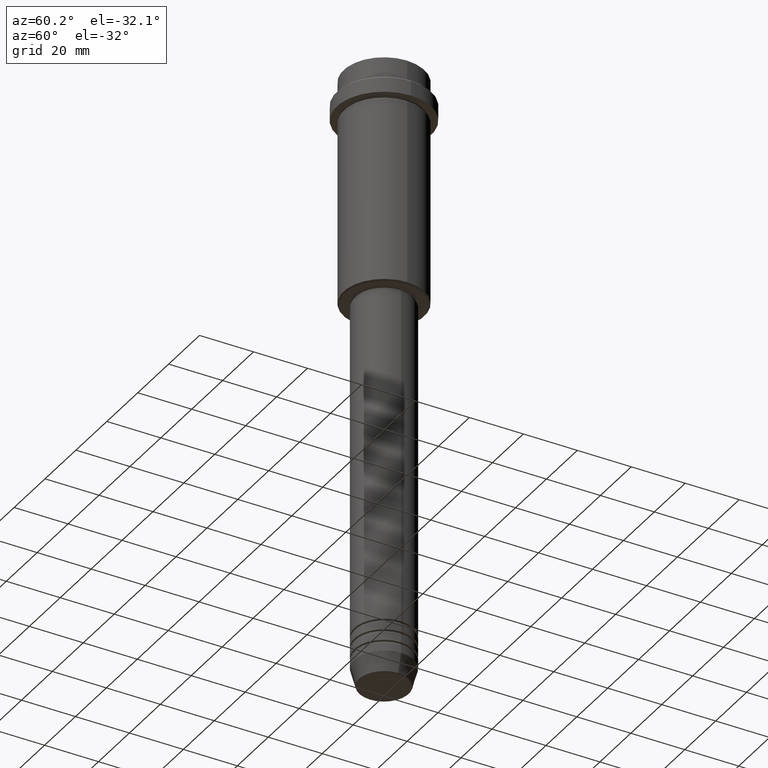
[diagram: clean part render]
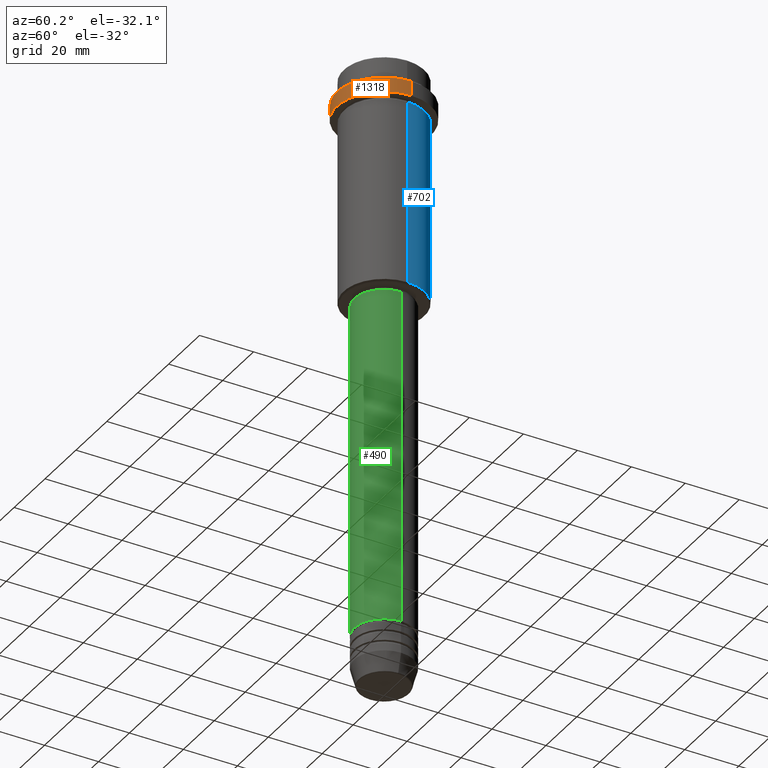
[diagram: same view with three faces highlighted in distinct colors, each labeled with its STEP entity id]
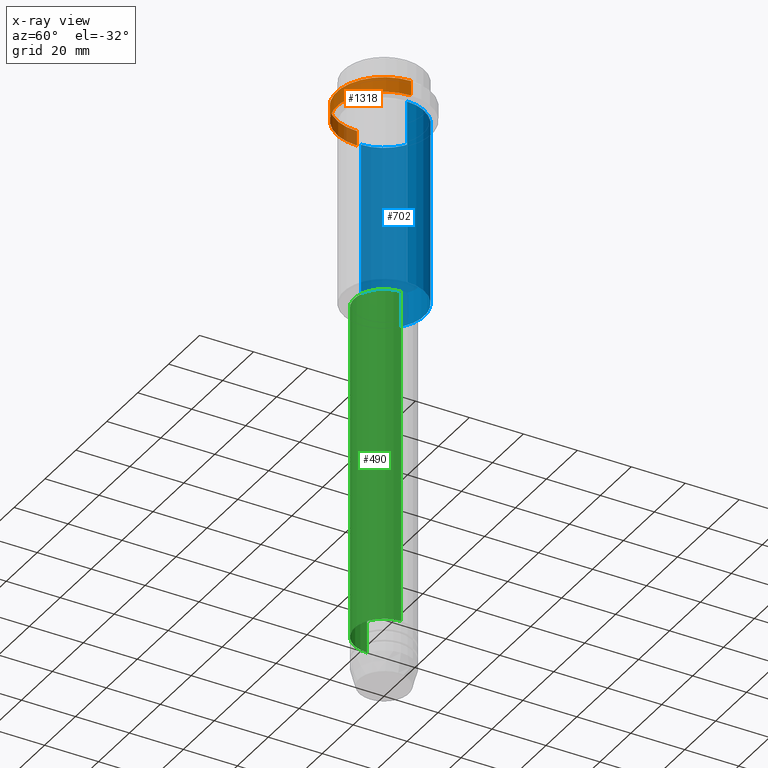
[diagram: x-ray of the same camera — body ghosted, the three highlighted faces saturated]
A machine part, auxiliary view with three faces highlighted in distinct colors.
The next image is the same camera in x-ray (body ghosted, the three faces saturated) — at least one of them is partly hidden behind the body in this view.
Their STEP definitions:

[orange] entity #1318 — the highlighted cylindrical surface (partial cylindrical patch) has radius 17.5 mm, axis along (-0, -0, 1).
#126 = FACE_OUTER_BOUND ( 'NONE', #506, .T. ) ;
#128 = CARTESIAN_POINT ( 'NONE',  ( 17.50000000000000000, 0.000000000000000000, 0.000000000000000000 ) ) ;
#178 = CARTESIAN_POINT ( 'NONE',  ( -17.50000000000000000, 2.143131898507868248E-15, 0.000000000000000000 ) ) ;
#236 = CIRCLE ( 'NONE', #348, 17.50000000000000000 ) ;
#239 = DIRECTION ( 'NONE',  ( -0.000000000000000000, -0.000000000000000000, 1.000000000000000000 ) ) ;
#277 = AXIS2_PLACEMENT_3D ( 'NONE', #1217, #787, #1025 ) ;
#293 = DIRECTION ( 'NONE',  ( 1.000000000000000000, 0.000000000000000000, 0.000000000000000000 ) ) ;
#348 = AXIS2_PLACEMENT_3D ( 'NONE', #962, #404, #293 ) ;
#398 = EDGE_CURVE ( 'NONE', #1394, #1043, #1016, .T. ) ;
#404 = DIRECTION ( 'NONE',  ( -0.000000000000000000, -0.000000000000000000, 1.000000000000000000 ) ) ;
#414 = AXIS2_PLACEMENT_3D ( 'NONE', #869, #239, #665 ) ;
#506 = EDGE_LOOP ( 'NONE', ( #1129, #1159, #769, #1089 ) ) ;
#508 = EDGE_CURVE ( 'NONE', #1043, #995, #753, .T. ) ;
#612 = DIRECTION ( 'NONE',  ( -0.000000000000000000, -0.000000000000000000, 1.000000000000000000 ) ) ;
#665 = DIRECTION ( 'NONE',  ( 1.000000000000000000, 0.000000000000000000, 0.000000000000000000 ) ) ;
#753 = CIRCLE ( 'NONE', #277, 17.50000000000000000 ) ;
#769 = ORIENTED_EDGE ( 'NONE', *, *, #398, .T. ) ;
#787 = DIRECTION ( 'NONE',  ( 0.000000000000000000, 0.000000000000000000, -1.000000000000000000 ) ) ;
#796 = CARTESIAN_POINT ( 'NONE',  ( 17.50000000000000000, 0.000000000000000000, -15.00000000000000000 ) ) ;
#804 = CARTESIAN_POINT ( 'NONE',  ( 17.50000000000000000, 0.000000000000000000, -9.499999999999971578 ) ) ;
#837 = VECTOR ( 'NONE', #612, 1000.000000000000000 ) ;
#869 = CARTESIAN_POINT ( 'NONE',  ( 0.000000000000000000, 0.000000000000000000, 0.000000000000000000 ) ) ;
#897 = CYLINDRICAL_SURFACE ( 'NONE', #414, 17.50000000000000000 ) ;
#930 = LINE ( 'NONE', #178, #837 ) ;
#944 = CARTESIAN_POINT ( 'NONE',  ( -17.50000000000000000, 2.143131898507868248E-15, -15.00000000000000000 ) ) ;
#962 = CARTESIAN_POINT ( 'NONE',  ( 0.000000000000000000, 0.000000000000000000, -15.00000000000000000 ) ) ;
#971 = VECTOR ( 'NONE', #1005, 1000.000000000000000 ) ;
#995 = VERTEX_POINT ( 'NONE', #1035 ) ;
#1005 = DIRECTION ( 'NONE',  ( -0.000000000000000000, -0.000000000000000000, 1.000000000000000000 ) ) ;
#1016 = LINE ( 'NONE', #128, #971 ) ;
#1025 = DIRECTION ( 'NONE',  ( 1.000000000000000000, 0.000000000000000000, 0.000000000000000000 ) ) ;
#1035 = CARTESIAN_POINT ( 'NONE',  ( -17.50000000000000000, 2.143131898507868248E-15, -9.499999999999971578 ) ) ;
#1043 = VERTEX_POINT ( 'NONE', #804 ) ;
#1080 = EDGE_CURVE ( 'NONE', #1119, #995, #930, .T. ) ;
#1089 = ORIENTED_EDGE ( 'NONE', *, *, #508, .T. ) ;
#1109 = EDGE_CURVE ( 'NONE', #1119, #1394, #236, .T. ) ;
#1119 = VERTEX_POINT ( 'NONE', #944 ) ;
#1129 = ORIENTED_EDGE ( 'NONE', *, *, #1080, .F. ) ;
#1159 = ORIENTED_EDGE ( 'NONE', *, *, #1109, .T. ) ;
#1217 = CARTESIAN_POINT ( 'NONE',  ( 0.000000000000000000, 0.000000000000000000, -9.499999999999971578 ) ) ;
#1318 = ADVANCED_FACE ( 'NONE', ( #126 ), #897, .T. ) ;
#1394 = VERTEX_POINT ( 'NONE', #796 ) ;

[blue] entity #702 — the highlighted cylindrical surface (partial cylindrical patch) has radius 15 mm, axis along (-0, -0, 1).
#4 = DIRECTION ( 'NONE',  ( -0.000000000000000000, -0.000000000000000000, 1.000000000000000000 ) ) ;
#50 = EDGE_LOOP ( 'NONE', ( #934, #1125, #1072, #774 ) ) ;
#108 = EDGE_CURVE ( 'NONE', #586, #1406, #946, .T. ) ;
#154 = EDGE_CURVE ( 'NONE', #1406, #1145, #262, .T. ) ;
#185 = EDGE_CURVE ( 'NONE', #895, #1145, #918, .T. ) ;
#262 = LINE ( 'NONE', #276, #802 ) ;
#276 = CARTESIAN_POINT ( 'NONE',  ( -15.00000000000000000, 1.836970198721029589E-15, 0.000000000000000000 ) ) ;
#314 = DIRECTION ( 'NONE',  ( 1.000000000000000000, 0.000000000000000000, 0.000000000000000000 ) ) ;
#358 = LINE ( 'NONE', #1124, #1396 ) ;
#391 = EDGE_CURVE ( 'NONE', #586, #895, #358, .T. ) ;
#477 = DIRECTION ( 'NONE',  ( -0.000000000000000000, -0.000000000000000000, 1.000000000000000000 ) ) ;
#484 = DIRECTION ( 'NONE',  ( -0.000000000000000000, -0.000000000000000000, 1.000000000000000000 ) ) ;
#570 = AXIS2_PLACEMENT_3D ( 'NONE', #1261, #484, #724 ) ;
#586 = VERTEX_POINT ( 'NONE', #1046 ) ;
#702 = ADVANCED_FACE ( 'NONE', ( #865 ), #1171, .T. ) ;
#724 = DIRECTION ( 'NONE',  ( -1.000000000000000000, 0.000000000000000000, 0.000000000000000000 ) ) ;
#774 = ORIENTED_EDGE ( 'NONE', *, *, #391, .F. ) ;
#802 = VECTOR ( 'NONE', #477, 1000.000000000000000 ) ;
#835 = DIRECTION ( 'NONE',  ( 1.000000000000000000, 0.000000000000000000, 0.000000000000000000 ) ) ;
#845 = CARTESIAN_POINT ( 'NONE',  ( -15.00000000000000355, 1.836970198721029983E-15, -16.00000000000000000 ) ) ;
#847 = DIRECTION ( 'NONE',  ( -0.000000000000000000, -0.000000000000000000, 1.000000000000000000 ) ) ;
#856 = AXIS2_PLACEMENT_3D ( 'NONE', #1175, #847, #314 ) ;
#865 = FACE_OUTER_BOUND ( 'NONE', #50, .T. ) ;
#886 = CARTESIAN_POINT ( 'NONE',  ( 15.00000000000000178, 0.000000000000000000, -16.00000000000000000 ) ) ;
#895 = VERTEX_POINT ( 'NONE', #886 ) ;
#918 = CIRCLE ( 'NONE', #1378, 15.00000000000000178 ) ;
#934 = ORIENTED_EDGE ( 'NONE', *, *, #108, .T. ) ;
#946 = CIRCLE ( 'NONE', #570, 15.00000000000000000 ) ;
#1046 = CARTESIAN_POINT ( 'NONE',  ( 15.00000000000000000, 0.000000000000000000, -84.49999999999997158 ) ) ;
#1054 = CARTESIAN_POINT ( 'NONE',  ( 0.000000000000000000, 0.000000000000000000, -16.00000000000000000 ) ) ;
#1072 = ORIENTED_EDGE ( 'NONE', *, *, #185, .F. ) ;
#1124 = CARTESIAN_POINT ( 'NONE',  ( 15.00000000000000000, 0.000000000000000000, 0.000000000000000000 ) ) ;
#1125 = ORIENTED_EDGE ( 'NONE', *, *, #154, .T. ) ;
#1145 = VERTEX_POINT ( 'NONE', #845 ) ;
#1171 = CYLINDRICAL_SURFACE ( 'NONE', #856, 15.00000000000000000 ) ;
#1175 = CARTESIAN_POINT ( 'NONE',  ( 0.000000000000000000, 0.000000000000000000, 0.000000000000000000 ) ) ;
#1237 = CARTESIAN_POINT ( 'NONE',  ( -15.00000000000000000, 1.836970198721029589E-15, -84.49999999999997158 ) ) ;
#1261 = CARTESIAN_POINT ( 'NONE',  ( 0.000000000000000000, 0.000000000000000000, -84.49999999999997158 ) ) ;
#1375 = DIRECTION ( 'NONE',  ( -0.000000000000000000, -0.000000000000000000, 1.000000000000000000 ) ) ;
#1378 = AXIS2_PLACEMENT_3D ( 'NONE', #1054, #1375, #835 ) ;
#1396 = VECTOR ( 'NONE', #4, 1000.000000000000000 ) ;
#1406 = VERTEX_POINT ( 'NONE', #1237 ) ;

[green] entity #490 — the highlighted cylindrical surface (edge-blend (fillet) strip) has radius 11 mm, axis along (-0, -0, 1).
#12 = DIRECTION ( 'NONE',  ( -0.000000000000000000, -0.000000000000000000, 1.000000000000000000 ) ) ;
#22 = CYLINDRICAL_SURFACE ( 'NONE', #1244, 11.00000000000000000 ) ;
#42 = EDGE_CURVE ( 'NONE', #557, #247, #1179, .T. ) ;
#95 = ORIENTED_EDGE ( 'NONE', *, *, #42, .F. ) ;
#105 = DIRECTION ( 'NONE',  ( -0.000000000000000000, -0.000000000000000000, 1.000000000000000000 ) ) ;
#111 = CARTESIAN_POINT ( 'NONE',  ( 0.000000000000000000, 0.000000000000000000, -210.9999999999998579 ) ) ;
#133 = CARTESIAN_POINT ( 'NONE',  ( 0.000000000000000000, 0.000000000000000000, 0.000000000000000000 ) ) ;
#139 = VECTOR ( 'NONE', #335, 1000.000000000000000 ) ;
#149 = CARTESIAN_POINT ( 'NONE',  ( 11.00000000000000000, 0.000000000000000000, -210.9999999999998579 ) ) ;
#247 = VERTEX_POINT ( 'NONE', #958 ) ;
#335 = DIRECTION ( 'NONE',  ( -0.000000000000000000, -0.000000000000000000, 1.000000000000000000 ) ) ;
#338 = LINE ( 'NONE', #1330, #389 ) ;
#389 = VECTOR ( 'NONE', #776, 1000.000000000000000 ) ;
#409 = EDGE_LOOP ( 'NONE', ( #632, #919, #1327, #95 ) ) ;
#444 = DIRECTION ( 'NONE',  ( 1.000000000000000000, 0.000000000000000000, 0.000000000000000000 ) ) ;
#490 = ADVANCED_FACE ( 'NONE', ( #550 ), #22, .T. ) ;
#498 = EDGE_CURVE ( 'NONE', #955, #247, #338, .T. ) ;
#544 = LINE ( 'NONE', #986, #139 ) ;
#548 = AXIS2_PLACEMENT_3D ( 'NONE', #1344, #691, #444 ) ;
#550 = FACE_OUTER_BOUND ( 'NONE', #409, .T. ) ;
#557 = VERTEX_POINT ( 'NONE', #1240 ) ;
#571 = CARTESIAN_POINT ( 'NONE',  ( -11.00000000000000000, 1.347111479062088405E-15, -210.9999999999998579 ) ) ;
#632 = ORIENTED_EDGE ( 'NONE', *, *, #1266, .F. ) ;
#669 = CIRCLE ( 'NONE', #879, 11.00000000000000000 ) ;
#691 = DIRECTION ( 'NONE',  ( -0.000000000000000000, -0.000000000000000000, 1.000000000000000000 ) ) ;
#776 = DIRECTION ( 'NONE',  ( -0.000000000000000000, -0.000000000000000000, 1.000000000000000000 ) ) ;
#836 = VERTEX_POINT ( 'NONE', #571 ) ;
#879 = AXIS2_PLACEMENT_3D ( 'NONE', #111, #105, #889 ) ;
#889 = DIRECTION ( 'NONE',  ( 1.000000000000000000, 0.000000000000000000, 0.000000000000000000 ) ) ;
#919 = ORIENTED_EDGE ( 'NONE', *, *, #1260, .T. ) ;
#955 = VERTEX_POINT ( 'NONE', #149 ) ;
#958 = CARTESIAN_POINT ( 'NONE',  ( 10.99999999999999822, 0.000000000000000000, -86.00000000000000000 ) ) ;
#986 = CARTESIAN_POINT ( 'NONE',  ( -11.00000000000000000, 1.347111479062088405E-15, 0.000000000000000000 ) ) ;
#992 = DIRECTION ( 'NONE',  ( 1.000000000000000000, 0.000000000000000000, 0.000000000000000000 ) ) ;
#1179 = CIRCLE ( 'NONE', #548, 10.99999999999999822 ) ;
#1240 = CARTESIAN_POINT ( 'NONE',  ( -10.99999999999999822, 1.347111479062088207E-15, -86.00000000000000000 ) ) ;
#1244 = AXIS2_PLACEMENT_3D ( 'NONE', #133, #12, #992 ) ;
#1260 = EDGE_CURVE ( 'NONE', #836, #955, #669, .T. ) ;
#1266 = EDGE_CURVE ( 'NONE', #836, #557, #544, .T. ) ;
#1327 = ORIENTED_EDGE ( 'NONE', *, *, #498, .T. ) ;
#1330 = CARTESIAN_POINT ( 'NONE',  ( 11.00000000000000000, 0.000000000000000000, 0.000000000000000000 ) ) ;
#1344 = CARTESIAN_POINT ( 'NONE',  ( 0.000000000000000000, 0.000000000000000000, -86.00000000000000000 ) ) ;